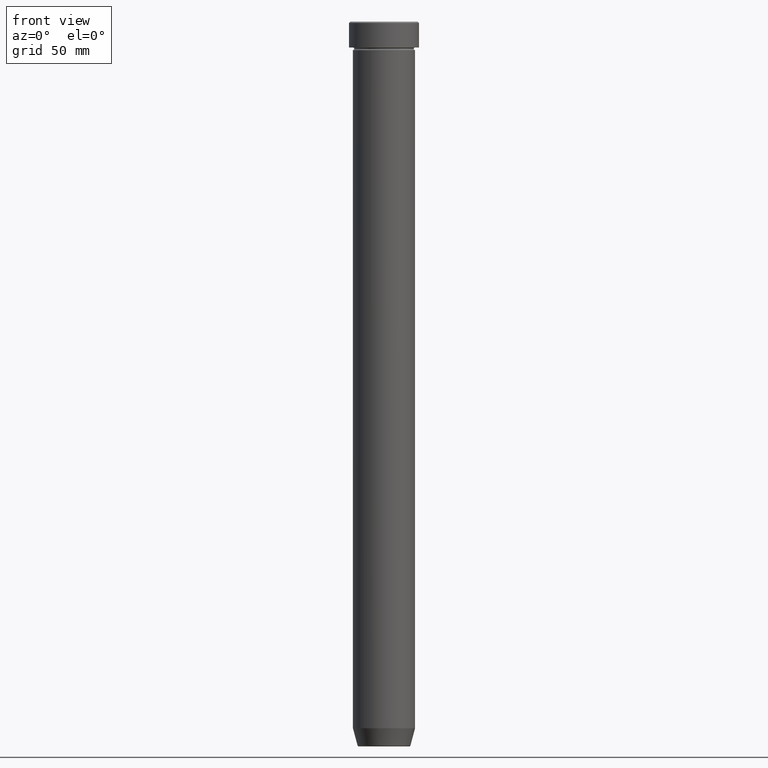
[diagram: clean part render]
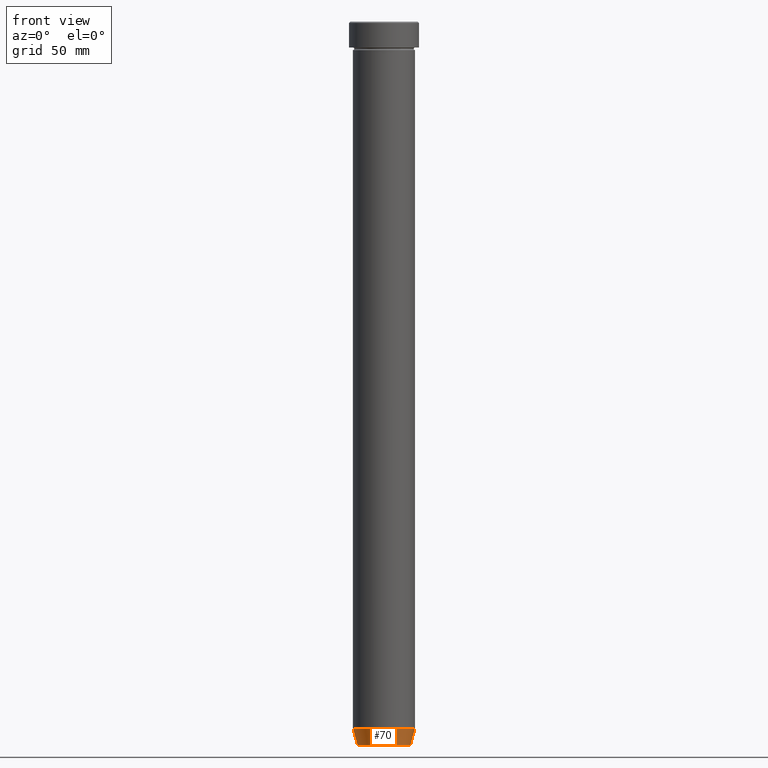
[diagram: same view with one face highlighted and labeled with its STEP entity id]
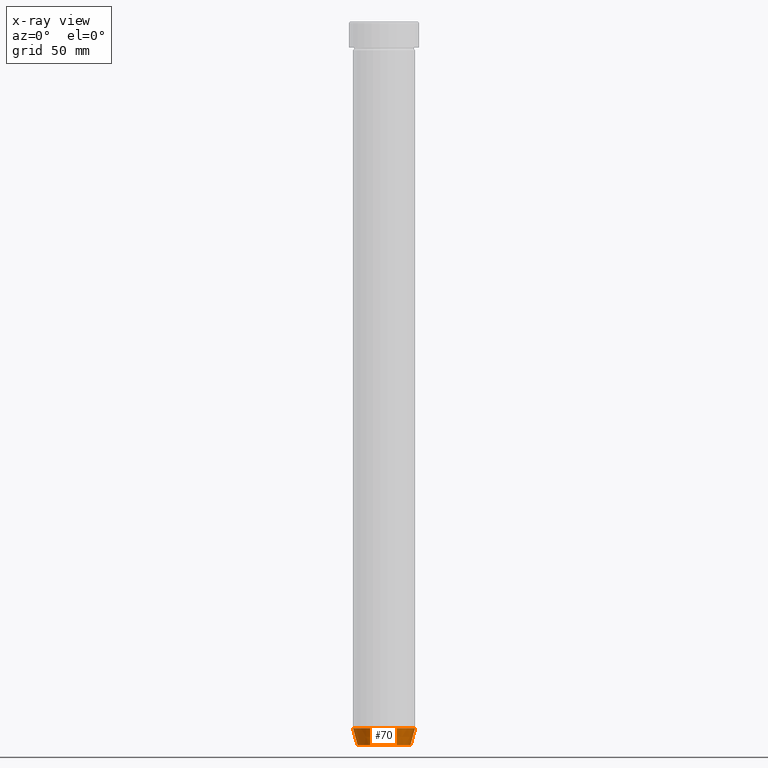
[diagram: x-ray of the same camera — body ghosted, the highlighted face saturated]
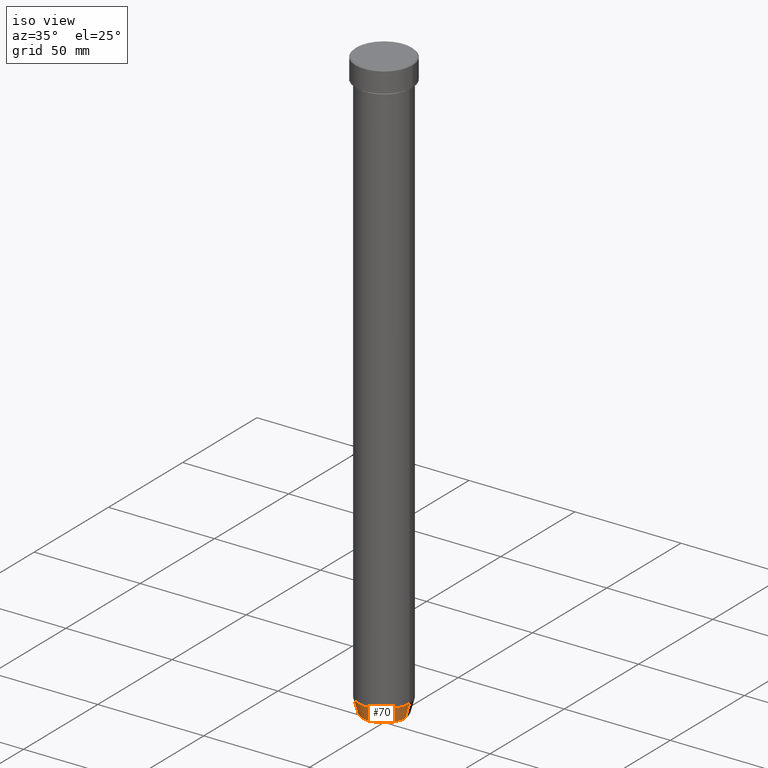
[diagram: same view with one face highlighted and labeled with its STEP entity id]
A machine part, front view. The second image highlights one B-rep face of the part: STEP entity #70.
The next image is the same camera in x-ray: the body ghosted, the highlighted face saturated — about 0% of this face is hidden behind the body in this view.
A second angle (iso view) of the same face is appended — the face is thin or edge-on in the first view.
In plain terms, the highlighted conical surface has half-angle 15 deg.
Its self-contained STEP definition (entity closure, byte-faithful):
#4 = AXIS2_PLACEMENT_3D ( 'NONE', #484, #158, #570 ) ;
#24 = CARTESIAN_POINT ( 'NONE',  ( -12.00000000000000000, 1.469576158976823947E-15, -273.0000000000000000 ) ) ;
#60 = EDGE_CURVE ( 'NONE', #215, #587, #575, .T. ) ;
#64 = VECTOR ( 'NONE', #438, 1000.000000000000114 ) ;
#70 = ADVANCED_FACE ( 'NONE', ( #203 ), #114, .T. ) ;
#96 = EDGE_CURVE ( 'NONE', #587, #419, #152, .T. ) ;
#97 = CARTESIAN_POINT ( 'NONE',  ( 0.000000000000000000, 0.000000000000000000, -279.6294095225512706 ) ) ;
#114 = CONICAL_SURFACE ( 'NONE', #4, 10.12435565298213369, 0.2617993877991502405 ) ;
#119 = CARTESIAN_POINT ( 'NONE',  ( 10.12435565298213369, 0.000000000000000000, -280.0000000000000000 ) ) ;
#124 = EDGE_CURVE ( 'NONE', #369, #419, #434, .T. ) ;
#140 = VECTOR ( 'NONE', #431, 1000.000000000000114 ) ;
#142 = ORIENTED_EDGE ( 'NONE', *, *, #96, .F. ) ;
#152 = CIRCLE ( 'NONE', #550, 12.00000000000000000 ) ;
#158 = DIRECTION ( 'NONE',  ( -0.000000000000000000, -0.000000000000000000, 1.000000000000000000 ) ) ;
#170 = CARTESIAN_POINT ( 'NONE',  ( 10.22365507213718416, 0.000000000000000000, -279.6294095225512706 ) ) ;
#178 = EDGE_CURVE ( 'NONE', #215, #369, #483, .T. ) ;
#201 = CARTESIAN_POINT ( 'NONE',  ( -10.12435565298213369, 1.239875974385398152E-15, -280.0000000000000000 ) ) ;
#203 = FACE_OUTER_BOUND ( 'NONE', #269, .T. ) ;
#211 = AXIS2_PLACEMENT_3D ( 'NONE', #97, #371, #471 ) ;
#215 = VERTEX_POINT ( 'NONE', #420 ) ;
#252 = DIRECTION ( 'NONE',  ( 1.000000000000000000, 0.000000000000000000, 0.000000000000000000 ) ) ;
#269 = EDGE_LOOP ( 'NONE', ( #317, #508, #310, #142 ) ) ;
#310 = ORIENTED_EDGE ( 'NONE', *, *, #124, .T. ) ;
#317 = ORIENTED_EDGE ( 'NONE', *, *, #60, .F. ) ;
#369 = VERTEX_POINT ( 'NONE', #170 ) ;
#371 = DIRECTION ( 'NONE',  ( -0.000000000000000000, -0.000000000000000000, 1.000000000000000000 ) ) ;
#419 = VERTEX_POINT ( 'NONE', #497 ) ;
#420 = CARTESIAN_POINT ( 'NONE',  ( -10.22365507213718416, 1.360806402472382153E-15, -279.6294095225512706 ) ) ;
#431 = DIRECTION ( 'NONE',  ( 0.2588190451025214611, 0.000000000000000000, 0.9659258262890679791 ) ) ;
#434 = LINE ( 'NONE', #119, #140 ) ;
#438 = DIRECTION ( 'NONE',  ( -0.2588190451025214611, 3.169619151431774186E-17, 0.9659258262890679791 ) ) ;
#471 = DIRECTION ( 'NONE',  ( -1.000000000000000000, 0.000000000000000000, 0.000000000000000000 ) ) ;
#483 = CIRCLE ( 'NONE', #211, 10.22365507213718416 ) ;
#484 = CARTESIAN_POINT ( 'NONE',  ( 0.000000000000000000, 0.000000000000000000, -280.0000000000000000 ) ) ;
#497 = CARTESIAN_POINT ( 'NONE',  ( 12.00000000000000000, 0.000000000000000000, -273.0000000000000000 ) ) ;
#508 = ORIENTED_EDGE ( 'NONE', *, *, #178, .T. ) ;
#532 = DIRECTION ( 'NONE',  ( -0.000000000000000000, -0.000000000000000000, 1.000000000000000000 ) ) ;
#550 = AXIS2_PLACEMENT_3D ( 'NONE', #574, #532, #252 ) ;
#570 = DIRECTION ( 'NONE',  ( 1.000000000000000000, 0.000000000000000000, 0.000000000000000000 ) ) ;
#574 = CARTESIAN_POINT ( 'NONE',  ( 0.000000000000000000, 0.000000000000000000, -273.0000000000000000 ) ) ;
#575 = LINE ( 'NONE', #201, #64 ) ;
#587 = VERTEX_POINT ( 'NONE', #24 ) ;